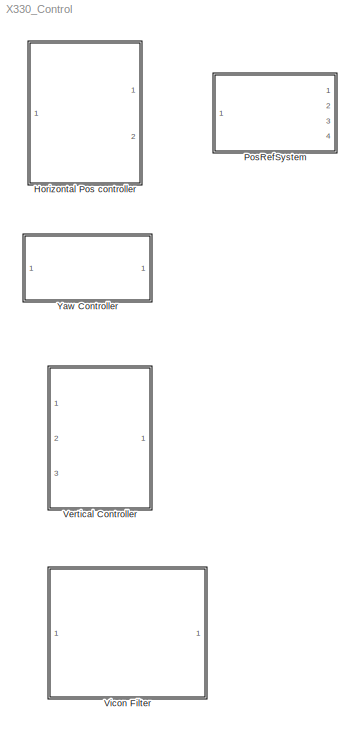
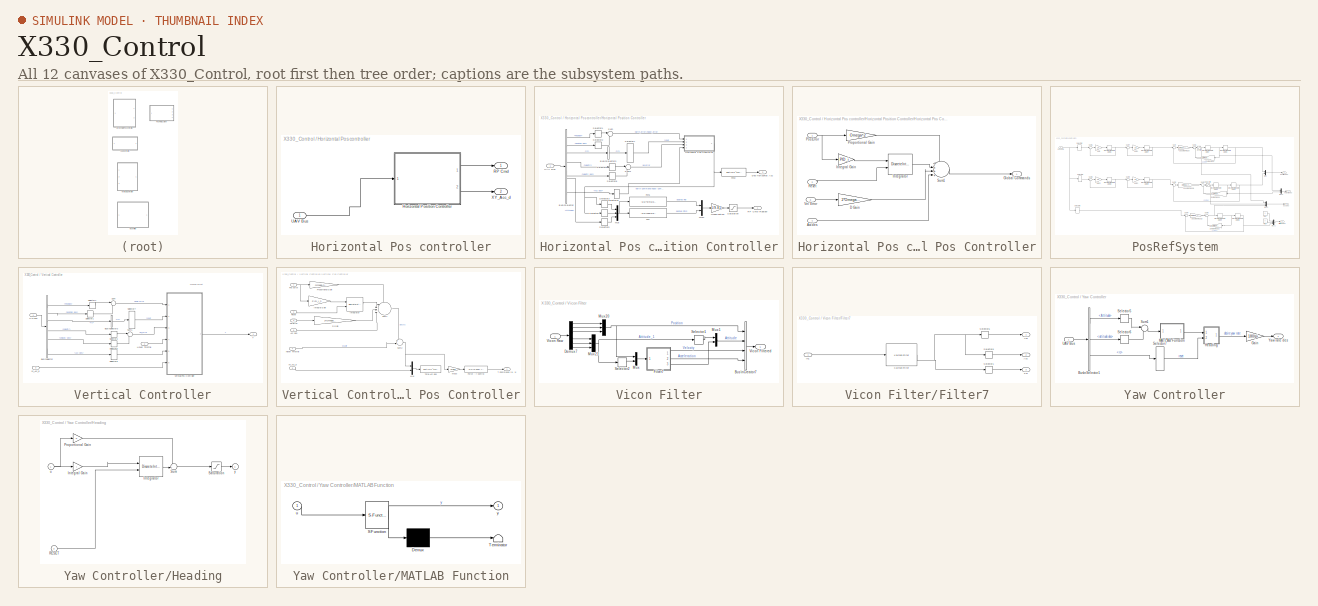
[diagram: thumbnail index - all 12 canvases of the model, root first then tree order]
MODEL X330_Control
KIND library
BLOCK [SubSystem] Horizontal Pos controller
  FunctionWithSeparateData = off
  MaskCallbackString = |||
  MaskEnableString = on,on,on,on
  MaskHideContents = off
  MaskIconFrame = on
  MaskIconOpaque = on
  MaskIconRotate = none
  MaskIconUnits = autoscale
  MaskPortRotate = default
  MaskPromptString = Cmd Maximum Roll/Pitch (Degree)|Omega (P Gain= Omega^2)|I Gain|Zeta (D = 2*Omega*Zeta)
  MaskStyleString = edit,edit,edit,edit
  MaskTabNameString = Setting,Control Parameters,Control Parameters,Control Parameters
  MaskToolTipString = on,on,on,on
  MaskTunableValueString = on,on,on,on
  MaskValueString = 60|2|1|0.5
  MaskVariables = Max_RP=@1;Omega=@2;PID_i=@3;Zeta=@4;
  MaskVisibilityString = on,on,on,on
  MinAlgLoopOccurrences = off
  Opaque = off
  Ports = [1, 2]
  PropExecContextOutsideSubsystem = off
  RTWSystemCode = Auto
  RequestExecContextInheritance = off
  SID = 1
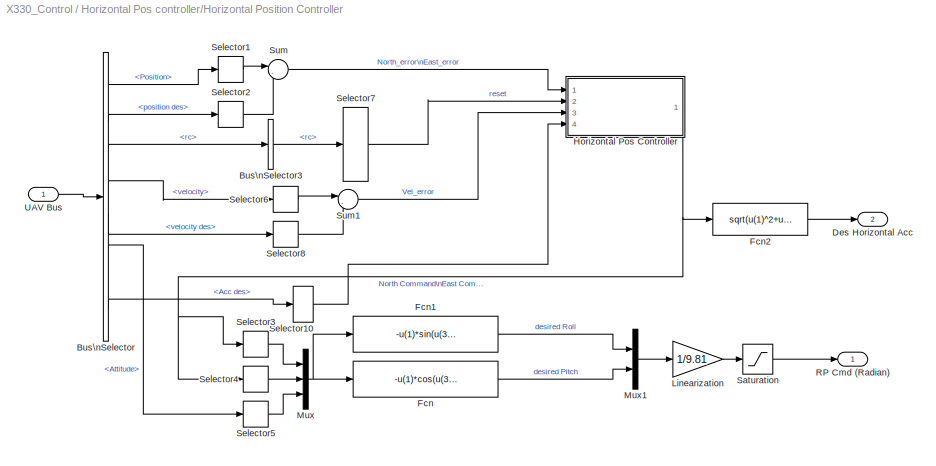
BLOCK [SubSystem] Horizontal Pos controller/Horizontal Position Controller
  FunctionWithSeparateData = off
  MaskHideContents = off
  MinAlgLoopOccurrences = off
  Opaque = off
  Ports = [1, 2]
  PropExecContextOutsideSubsystem = off
  RTWSystemCode = Auto
  RequestExecContextInheritance = off
  SID = 5
BLOCK [BusSelector] Horizontal Pos controller/Horizontal Position Controller/Bus\nSelector
  OutputSignals = Position,position des,rc,velocity,velocity des,Attitude,Acceleration,Acc des
  Ports = [1, 8]
  SID = 7
BLOCK [BusSelector] Horizontal Pos controller/Horizontal Position Controller/Bus\nSelector3
  OutputSignals = rc
  Ports = [1, 1]
  SID = 8
BLOCK [Outport] Horizontal Pos controller/Horizontal Position Controller/Des Horizontal Acc
  IconDisplay = Port number
  Port = 2
  SID = 183
BLOCK [Fcn] Horizontal Pos controller/Horizontal Position Controller/Fcn
  Expr = -u(1)*cos(u(3)) - u(2)*sin(u(3))
  SID = 9
BLOCK [Fcn] Horizontal Pos controller/Horizontal Position Controller/Fcn1
  Expr = -u(1)*sin(u(3)) + u(2)*cos(u(3))
  SID = 10
BLOCK [Fcn] Horizontal Pos controller/Horizontal Position Controller/Fcn2
  Expr = sqrt(u(1)^2+u(1)^2)
  SID = 182
BLOCK [SubSystem] Horizontal Pos controller/Horizontal Position Controller/Horizontal Pos Controller
  FunctionWithSeparateData = off
  MaskHideContents = off
  MinAlgLoopOccurrences = off
  Opaque = off
  Ports = [4, 1]
  PropExecContextOutsideSubsystem = off
  RTWSystemCode = Auto
  RequestExecContextInheritance = off
  SID = 11
BLOCK [Inport] Horizontal Pos controller/Horizontal Position Controller/Horizontal Pos Controller/Acc des
  IconDisplay = Port number
  Port = 4
  SID = 15
BLOCK [Gain] Horizontal Pos controller/Horizontal Position Controller/Horizontal Pos Controller/D Gain
  Gain = 2*Omega*Zeta
  OutDataTypeStr = double
  ParamDataTypeStr = Inherit: Inherit via internal rule
  SID = 16
  SaturateOnIntegerOverflow = off
BLOCK [Outport] Horizontal Pos controller/Horizontal Position Controller/Horizontal Pos Controller/Global Commands
  IconDisplay = Port number
  SID = 21
BLOCK [Gain] Horizontal Pos controller/Horizontal Position Controller/Horizontal Pos Controller/Integral Gain
  DisableCoverage = on
  Gain = PID_i
  OutDataTypeStr = double
  ParamDataTypeStr = double
  SID = 17
  SaturateOnIntegerOverflow = off
BLOCK [DiscreteIntegrator] Horizontal Pos controller/Horizontal Position Controller/Horizontal Pos Controller/Integrator
  DisableCoverage = on
  ExternalReset = rising
  ICPrevOutput = DiscIntNeverNeededParam
  ICPrevScaledInput = DiscIntNeverNeededParam
  InitialConditionMode = State only (most efficient)
  InitialConditionSource = internal
  IntegratorMethod = Integration: Trapezoidal
  LowerSaturationLimit = -10*pi/180
  OutDataTypeStr = double
  Ports = [2, 1]
  SID = 18
  SampleTime = -1
  UpperSaturationLimit = 10*pi/180
BLOCK [Inport] Horizontal Pos controller/Horizontal Position Controller/Horizontal Pos Controller/Pos Error
  IconDisplay = Port number
  SID = 12
BLOCK [Gain] Horizontal Pos controller/Horizontal Position Controller/Horizontal Pos Controller/Proportional Gain
  DisableCoverage = on
  Gain = Omega^2
  OutDataTypeStr = double
  ParamDataTypeStr = double
  SID = 19
  SaturateOnIntegerOverflow = off
BLOCK [Inport] Horizontal Pos controller/Horizontal Position Controller/Horizontal Pos Controller/Reset
  IconDisplay = Port number
  Port = 2
  SID = 13
BLOCK [Sum] Horizontal Pos controller/Horizontal Position Controller/Horizontal Pos Controller/Sum1
  AccumDataTypeStr = double
  DisableCoverage = on
  IconShape = round
  InputSameDT = off
  Inputs = ++++|
  OutDataTypeStr = double
  Ports = [4, 1]
  SID = 20
  SampleTime = 0.02
  SaturateOnIntegerOverflow = off
BLOCK [Inport] Horizontal Pos controller/Horizontal Position Controller/Horizontal Pos Controller/Vel Error
  IconDisplay = Port number
  Port = 3
  SID = 14
BLOCK [Gain] Horizontal Pos controller/Horizontal Position Controller/Linearization
  Gain = 1/9.81
  OutDataTypeStr = double
  ParamDataTypeStr = Inherit: Inherit via internal rule
  SID = 22
  SaturateOnIntegerOverflow = off
BLOCK [Mux] Horizontal Pos controller/Horizontal Position Controller/Mux
  DisplayOption = bar
  Inputs = 3
  Ports = [3, 1]
  SID = 23
BLOCK [Mux] Horizontal Pos controller/Horizontal Position Controller/Mux1
  DisplayOption = bar
  Inputs = 2
  Ports = [2, 1]
  SID = 24
BLOCK [Outport] Horizontal Pos controller/Horizontal Position Controller/RP Cmd (Radian)
  IconDisplay = Port number
  SID = 37
BLOCK [Saturate] Horizontal Pos controller/Horizontal Position Controller/Saturation
  InputPortMap = u0
  LowerLimit = -Max_RP
  Ports = [1, 1]
  SID = 25
  UpperLimit = Max_RP
BLOCK [Selector] Horizontal Pos controller/Horizontal Position Controller/Selector1
  IndexOptions = Index vector (dialog)
  Indices = [1 2]
  InputPortWidth = 3
  OutputSizes = 1
  Ports = [1, 1]
  SID = 26
BLOCK [Selector] Horizontal Pos controller/Horizontal Position Controller/Selector10
  IndexOptions = Index vector (dialog)
  Indices = [1 2]
  InputPortWidth = 4
  OutputSizes = 1
  Ports = [1, 1]
  SID = 27
BLOCK [Selector] Horizontal Pos controller/Horizontal Position Controller/Selector2
  IndexOptions = Index vector (dialog)
  Indices = [1 2]
  InputPortWidth = 3
  OutputSizes = 1
  Ports = [1, 1]
  SID = 28
BLOCK [Selector] Horizontal Pos controller/Horizontal Position Controller/Selector3
  IndexOptions = Index vector (dialog)
  Indices = [1]
  InputPortWidth = 2
  OutputSizes = 1
  Ports = [1, 1]
  SID = 29
BLOCK [Selector] Horizontal Pos controller/Horizontal Position Controller/Selector4
  IndexOptions = Index vector (dialog)
  Indices = [2]
  InputPortWidth = 2
  OutputSizes = 1
  Ports = [1, 1]
  SID = 30
BLOCK [Selector] Horizontal Pos controller/Horizontal Position Controller/Selector5
  IndexOptions = Index vector (dialog)
  Indices = [3]
  InputPortWidth = 3
  OutputSizes = 1
  Ports = [1, 1]
  SID = 31
BLOCK [Selector] Horizontal Pos controller/Horizontal Position Controller/Selector6
  IndexOptions = Index vector (dialog)
  Indices = [1 2]
  InputPortWidth = 3
  OutputSizes = 1
  Ports = [1, 1]
  SID = 32
BLOCK [Selector] Horizontal Pos controller/Horizontal Position Controller/Selector7
  IndexOptions = Index vector (dialog)
  Indices = [7]
  InputPortWidth = 8
  OutputSizes = 1
  Ports = [1, 1]
  SID = 33
BLOCK [Selector] Horizontal Pos controller/Horizontal Position Controller/Selector8
  IndexOptions = Index vector (dialog)
  Indices = [1 2]
  InputPortWidth = 3
  OutputSizes = 1
  Ports = [1, 1]
  SID = 34
BLOCK [Sum] Horizontal Pos controller/Horizontal Position Controller/Sum
  IconShape = round
  InputSameDT = off
  Inputs = |-+
  OutDataTypeStr = Inherit: Inherit via internal rule
  Ports = [2, 1]
  SID = 35
  SaturateOnIntegerOverflow = off
BLOCK [Sum] Horizontal Pos controller/Horizontal Position Controller/Sum1
  IconShape = round
  InputSameDT = off
  Inputs = |-+
  OutDataTypeStr = Inherit: Inherit via internal rule
  Ports = [2, 1]
  SID = 36
  SaturateOnIntegerOverflow = off
BLOCK [Inport] Horizontal Pos controller/Horizontal Position Controller/UAV Bus
  IconDisplay = Port number
  SID = 6
BLOCK [Outport] Horizontal Pos controller/RP Cmd
  IconDisplay = Port number
  SID = 45
BLOCK [Inport] Horizontal Pos controller/UAV Bus
  IconDisplay = Port number
  SID = 2
BLOCK [Outport] Horizontal Pos controller/XY_Acc_d
  IconDisplay = Port number
  Port = 2
  SID = 184
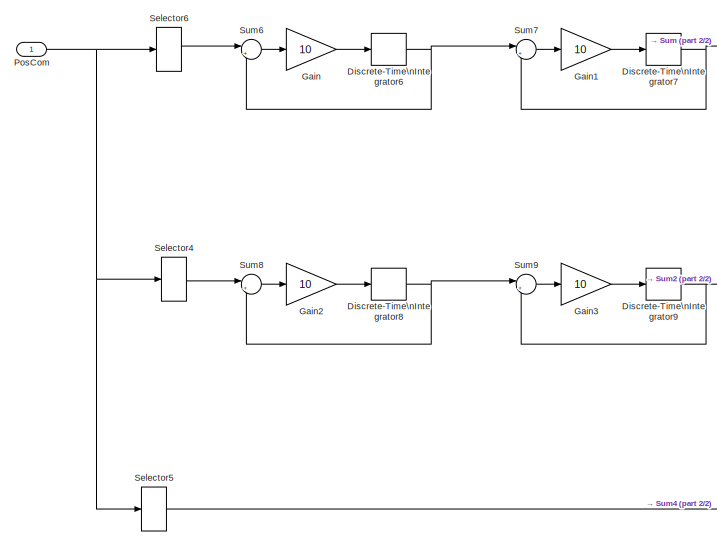
[diagram: PosRefSystem - part 1/2, left side, full height]
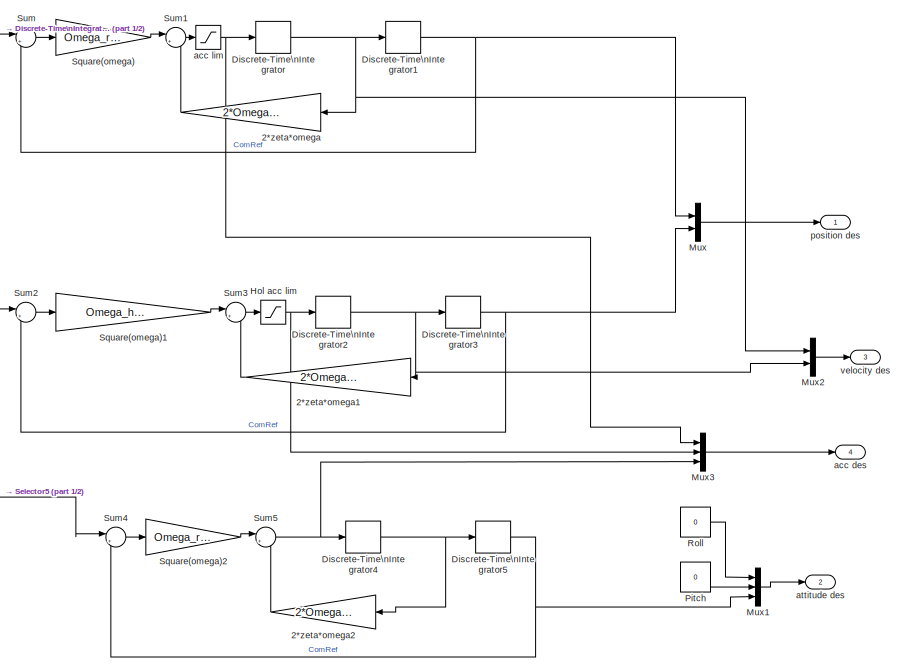
[diagram: PosRefSystem - part 2/2, right side, full height]
BLOCK [SubSystem] PosRefSystem
  FunctionWithSeparateData = off
  MaskCallbackString = |||||
  MaskEnableString = on,on,on,on,on,on
  MaskHideContents = off
  MaskIconFrame = on
  MaskIconOpaque = on
  MaskIconRotate = none
  MaskIconUnits = autoscale
  MaskPortRotate = default
  MaskPromptString = Omega_r (P Gain= Omega_r^2)|Zeta_r (D = 2*Omega_r*Zeta_r)|Acc_Max|Omega_h_r|Zeta_h_r|Acc_h_Max
  MaskStyleString = edit,edit,edit,edit,edit,edit
  MaskTabNameString = Horizontal Setting,Horizontal Setting,Horizontal Setting,Vertical Setting,Vertical Setting,Vertical Setting
  MaskToolTipString = on,on,on,on,on,on
  MaskTunableValueString = on,on,on,on,on,on
  MaskValueString = 1.8|0.5|5|3|1|4
  MaskVariables = Omega_r=@1;Zeta_r=@2;Acc_Max=@3;Omega_h_r=@4;Zeta_h_r=@5;Acc_h_Max=@6;
  MaskVisibilityString = on,on,on,on,on,on
  MinAlgLoopOccurrences = off
  Opaque = off
  Ports = [1, 4]
  PropExecContextOutsideSubsystem = off
  RTWSystemCode = Auto
  RequestExecContextInheritance = off
  SID = 100
BLOCK [Gain] PosRefSystem/2*zeta*omega
  Gain = 2*Omega_r*Zeta_r
  OutDataTypeStr = Inherit: Inherit via internal rule
  ParamDataTypeStr = Inherit: Inherit via internal rule
  SID = 102
  SaturateOnIntegerOverflow = off
BLOCK [Gain] PosRefSystem/2*zeta*omega1
  Gain = 2*Omega_h_r*Zeta_h_r
  OutDataTypeStr = Inherit: Inherit via internal rule
  ParamDataTypeStr = Inherit: Inherit via internal rule
  SID = 103
  SaturateOnIntegerOverflow = off
BLOCK [Gain] PosRefSystem/2*zeta*omega2
  Gain = 2*Omega_r
  OutDataTypeStr = Inherit: Inherit via internal rule
  ParamDataTypeStr = Inherit: Inherit via internal rule
  SID = 104
  SaturateOnIntegerOverflow = off
BLOCK [DiscreteIntegrator] PosRefSystem/Discrete-Time\nIntegrator
  ExternalReset = none
  ICPrevOutput = DiscIntNeverNeededParam
  ICPrevScaledInput = DiscIntNeverNeededParam
  InitialConditionSource = internal
  IntegratorMethod = Integration: Forward Euler
  Ports = [1, 1]
  SID = 105
  SampleTime = -1
BLOCK [DiscreteIntegrator] PosRefSystem/Discrete-Time\nIntegrator1
  ExternalReset = none
  ICPrevOutput = DiscIntNeverNeededParam
  ICPrevScaledInput = DiscIntNeverNeededParam
  InitialConditionSource = internal
  IntegratorMethod = Integration: Forward Euler
  Ports = [1, 1]
  SID = 106
  SampleTime = -1
BLOCK [DiscreteIntegrator] PosRefSystem/Discrete-Time\nIntegrator2
  ExternalReset = none
  ICPrevOutput = DiscIntNeverNeededParam
  ICPrevScaledInput = DiscIntNeverNeededParam
  InitialConditionSource = internal
  IntegratorMethod = Integration: Forward Euler
  Ports = [1, 1]
  SID = 107
  SampleTime = -1
BLOCK [DiscreteIntegrator] PosRefSystem/Discrete-Time\nIntegrator3
  ExternalReset = none
  ICPrevOutput = DiscIntNeverNeededParam
  ICPrevScaledInput = DiscIntNeverNeededParam
  InitialConditionSource = internal
  IntegratorMethod = Integration: Forward Euler
  Ports = [1, 1]
  SID = 108
  SampleTime = -1
BLOCK [DiscreteIntegrator] PosRefSystem/Discrete-Time\nIntegrator4
  ExternalReset = none
  ICPrevOutput = DiscIntNeverNeededParam
  ICPrevScaledInput = DiscIntNeverNeededParam
  InitialConditionSource = internal
  IntegratorMethod = Integration: Forward Euler
  Ports = [1, 1]
  SID = 109
  SampleTime = -1
BLOCK [DiscreteIntegrator] PosRefSystem/Discrete-Time\nIntegrator5
  ExternalReset = none
  ICPrevOutput = DiscIntNeverNeededParam
  ICPrevScaledInput = DiscIntNeverNeededParam
  InitialConditionSource = internal
  IntegratorMethod = Integration: Forward Euler
  Ports = [1, 1]
  SID = 110
  SampleTime = -1
BLOCK [DiscreteIntegrator] PosRefSystem/Discrete-Time\nIntegrator6
  ExternalReset = none
  ICPrevOutput = DiscIntNeverNeededParam
  ICPrevScaledInput = DiscIntNeverNeededParam
  InitialConditionSource = internal
  IntegratorMethod = Integration: Forward Euler
  Ports = [1, 1]
  SID = 111
  SampleTime = -1
BLOCK [DiscreteIntegrator] PosRefSystem/Discrete-Time\nIntegrator7
  ExternalReset = none
  ICPrevOutput = DiscIntNeverNeededParam
  ICPrevScaledInput = DiscIntNeverNeededParam
  InitialConditionSource = internal
  IntegratorMethod = Integration: Forward Euler
  Ports = [1, 1]
  SID = 112
  SampleTime = -1
BLOCK [DiscreteIntegrator] PosRefSystem/Discrete-Time\nIntegrator8
  ExternalReset = none
  ICPrevOutput = DiscIntNeverNeededParam
  ICPrevScaledInput = DiscIntNeverNeededParam
  InitialConditionSource = internal
  IntegratorMethod = Integration: Forward Euler
  Ports = [1, 1]
  SID = 113
  SampleTime = -1
BLOCK [DiscreteIntegrator] PosRefSystem/Discrete-Time\nIntegrator9
  ExternalReset = none
  ICPrevOutput = DiscIntNeverNeededParam
  ICPrevScaledInput = DiscIntNeverNeededParam
  InitialConditionSource = internal
  IntegratorMethod = Integration: Forward Euler
  Ports = [1, 1]
  SID = 114
  SampleTime = -1
BLOCK [Gain] PosRefSystem/Gain
  Gain = 10
  OutDataTypeStr = Inherit: Inherit via internal rule
  ParamDataTypeStr = Inherit: Inherit via internal rule
  SID = 115
  SaturateOnIntegerOverflow = off
BLOCK [Gain] PosRefSystem/Gain1
  Gain = 10
  OutDataTypeStr = Inherit: Inherit via internal rule
  ParamDataTypeStr = Inherit: Inherit via internal rule
  SID = 116
  SaturateOnIntegerOverflow = off
BLOCK [Gain] PosRefSystem/Gain2
  Gain = 10
  OutDataTypeStr = Inherit: Inherit via internal rule
  ParamDataTypeStr = Inherit: Inherit via internal rule
  SID = 117
  SaturateOnIntegerOverflow = off
BLOCK [Gain] PosRefSystem/Gain3
  Gain = 10
  OutDataTypeStr = Inherit: Inherit via internal rule
  ParamDataTypeStr = Inherit: Inherit via internal rule
  SID = 118
  SaturateOnIntegerOverflow = off
BLOCK [Saturate] PosRefSystem/Hol acc lim
  InputPortMap = u0
  LowerLimit = -Acc_h_Max
  Ports = [1, 1]
  SID = 119
  UpperLimit = Acc_h_Max
BLOCK [Mux] PosRefSystem/Mux
  DisplayOption = bar
  Inputs = 2
  Ports = [2, 1]
  SID = 120
BLOCK [Mux] PosRefSystem/Mux1
  DisplayOption = bar
  Inputs = 3
  Ports = [3, 1]
  SID = 121
BLOCK [Mux] PosRefSystem/Mux2
  DisplayOption = bar
  Inputs = 2
  Ports = [2, 1]
  SID = 122
BLOCK [Mux] PosRefSystem/Mux3
  DisplayOption = bar
  Inputs = 3
  Ports = [3, 1]
  SID = 123
BLOCK [Constant] PosRefSystem/Pitch
  SID = 124
  SampleTime = 0.02
  Value = 0
BLOCK [Inport] PosRefSystem/PosCom
  IconDisplay = Port number
  SID = 101
BLOCK [Constant] PosRefSystem/Roll
  SID = 125
  SampleTime = 0.02
  Value = 0
BLOCK [Selector] PosRefSystem/Selector4
  IndexOptions = Index vector (dialog)
  Indices = [3]
  InputPortWidth = 4
  OutputSizes = 1
  Ports = [1, 1]
  SID = 126
BLOCK [Selector] PosRefSystem/Selector5
  IndexOptions = Index vector (dialog)
  Indices = [4]
  InputPortWidth = 4
  OutputSizes = 1
  Ports = [1, 1]
  SID = 127
BLOCK [Selector] PosRefSystem/Selector6
  IndexOptions = Index vector (dialog)
  Indices = [1 2]
  InputPortWidth = 4
  OutputSizes = 1
  Ports = [1, 1]
  SID = 128
BLOCK [Gain] PosRefSystem/Square(omega)
  Gain = Omega_r^2
  OutDataTypeStr = Inherit: Inherit via internal rule
  ParamDataTypeStr = Inherit: Inherit via internal rule
  SID = 129
  SaturateOnIntegerOverflow = off
BLOCK [Gain] PosRefSystem/Square(omega)1
  Gain = Omega_h_r^2
  OutDataTypeStr = Inherit: Inherit via internal rule
  ParamDataTypeStr = Inherit: Inherit via internal rule
  SID = 130
  SaturateOnIntegerOverflow = off
BLOCK [Gain] PosRefSystem/Square(omega)2
  Gain = Omega_r^2
  OutDataTypeStr = Inherit: Inherit via internal rule
  ParamDataTypeStr = Inherit: Inherit via internal rule
  SID = 131
  SaturateOnIntegerOverflow = off
BLOCK [Sum] PosRefSystem/Sum
  IconShape = round
  InputSameDT = off
  Inputs = |+-
  OutDataTypeStr = Inherit: Inherit via internal rule
  Ports = [2, 1]
  SID = 132
  SaturateOnIntegerOverflow = off
BLOCK [Sum] PosRefSystem/Sum1
  IconShape = round
  InputSameDT = off
  Inputs = |+-
  OutDataTypeStr = Inherit: Inherit via internal rule
  Ports = [2, 1]
  SID = 133
  SaturateOnIntegerOverflow = off
BLOCK [Sum] PosRefSystem/Sum2
  IconShape = round
  InputSameDT = off
  Inputs = |+-
  OutDataTypeStr = Inherit: Inherit via internal rule
  Ports = [2, 1]
  SID = 134
  SaturateOnIntegerOverflow = off
BLOCK [Sum] PosRefSystem/Sum3
  IconShape = round
  InputSameDT = off
  Inputs = |+-
  OutDataTypeStr = Inherit: Inherit via internal rule
  Ports = [2, 1]
  SID = 135
  SaturateOnIntegerOverflow = off
BLOCK [Sum] PosRefSystem/Sum4
  IconShape = round
  InputSameDT = off
  Inputs = |+-
  OutDataTypeStr = Inherit: Inherit via internal rule
  Ports = [2, 1]
  SID = 136
  SaturateOnIntegerOverflow = off
BLOCK [Sum] PosRefSystem/Sum5
  IconShape = round
  InputSameDT = off
  Inputs = |+-
  OutDataTypeStr = Inherit: Inherit via internal rule
  Ports = [2, 1]
  SID = 137
  SaturateOnIntegerOverflow = off
BLOCK [Sum] PosRefSystem/Sum6
  IconShape = round
  InputSameDT = off
  Inputs = |+-
  OutDataTypeStr = Inherit: Inherit via internal rule
  Ports = [2, 1]
  SID = 138
  SaturateOnIntegerOverflow = off
BLOCK [Sum] PosRefSystem/Sum7
  IconShape = round
  InputSameDT = off
  Inputs = |+-
  OutDataTypeStr = Inherit: Inherit via internal rule
  Ports = [2, 1]
  SID = 139
  SaturateOnIntegerOverflow = off
BLOCK [Sum] PosRefSystem/Sum8
  IconShape = round
  InputSameDT = off
  Inputs = |+-
  OutDataTypeStr = Inherit: Inherit via internal rule
  Ports = [2, 1]
  SID = 140
  SaturateOnIntegerOverflow = off
BLOCK [Sum] PosRefSystem/Sum9
  IconShape = round
  InputSameDT = off
  Inputs = |+-
  OutDataTypeStr = Inherit: Inherit via internal rule
  Ports = [2, 1]
  SID = 141
  SaturateOnIntegerOverflow = off
BLOCK [Outport] PosRefSystem/acc des
  IconDisplay = Port number
  Port = 4
  SID = 146
BLOCK [Saturate] PosRefSystem/acc lim
  InputPortMap = u0
  LowerLimit = -Acc_Max
  Ports = [1, 1]
  SID = 142
  UpperLimit = Acc_Max
BLOCK [Outport] PosRefSystem/attitude des
  IconDisplay = Port number
  Port = 2
  SID = 144
BLOCK [Outport] PosRefSystem/position des
  IconDisplay = Port number
  SID = 143
BLOCK [Outport] PosRefSystem/velocity des
  IconDisplay = Port number
  Port = 3
  SID = 145
BLOCK [SubSystem] Vertical Controller
  FunctionWithSeparateData = off
  MaskCallbackString = |||
  MaskEnableString = on,on,on,on
  MaskHideContents = off
  MaskIconFrame = on
  MaskIconOpaque = on
  MaskIconRotate = none
  MaskIconUnits = autoscale
  MaskPortRotate = default
  MaskPromptString = Omega (P Gain  = Omega^2)|Zeta (D Gain = 2*Omega*Zeta)|I Gain|Mass
  MaskStyleString = edit,edit,edit,edit
  MaskTabNameString = Control Paramters,Control Paramters,Control Paramters,Mass
  MaskToolTipString = on,on,on,on
  MaskTunableValueString = on,on,on,on
  MaskValueString = 3.1|1|1|0.65
  MaskVariables = Omega_h=@1;Zeta_h=@2;PID_I_h=@3;mass=@4;
  MaskVisibilityString = on,on,on,on
  MinAlgLoopOccurrences = off
  Opaque = off
  Ports = [3, 1]
  PropExecContextOutsideSubsystem = off
  RTWSystemCode = Auto
  RequestExecContextInheritance = off
  SID = 57
BLOCK [BusSelector] Vertical Controller/Bus\nSelector
  OutputSignals = Position,position des,rc,velocity,velocity des,Acc des
  Ports = [1, 6]
  SID = 61
BLOCK [BusSelector] Vertical Controller/Bus\nSelector3
  OutputSignals = rc
  Ports = [1, 1]
  SID = 62
BLOCK [Inport] Vertical Controller/Hover Throttle
  IconDisplay = Port number
  Port = 2
  SID = 59
BLOCK [Selector] Vertical Controller/Selector1
  IndexOptions = Index vector (dialog)
  Indices = [3]
  InputPortWidth = 3
  OutputSizes = 1
  Ports = [1, 1]
  SID = 66
BLOCK [Selector] Vertical Controller/Selector3
  IndexOptions = Index vector (dialog)
  Indices = [3]
  InputPortWidth = 3
  OutputSizes = 1
  Ports = [1, 1]
  SID = 68
BLOCK [Selector] Vertical Controller/Selector4
  IndexOptions = Index vector (dialog)
  Indices = [3]
  InputPortWidth = 3
  OutputSizes = 1
  Ports = [1, 1]
  SID = 69
BLOCK [Selector] Vertical Controller/Selector5
  IndexOptions = Index vector (dialog)
  Indices = [3]
  InputPortWidth = 3
  OutputSizes = 1
  Ports = [1, 1]
  SID = 70
BLOCK [Selector] Vertical Controller/Selector6
  IndexOptions = Index vector (dialog)
  Indices = [3]
  InputPortWidth = 4
  OutputSizes = 1
  Ports = [1, 1]
  SID = 71
BLOCK [Selector] Vertical Controller/Selector7
  IndexOptions = Index vector (dialog)
  Indices = [7]
  InputPortWidth = 8
  OutputSizes = 1
  Ports = [1, 1]
  SID = 72
BLOCK [Sum] Vertical Controller/Sum
  IconShape = round
  InputSameDT = off
  Inputs = |-+
  OutDataTypeStr = Inherit: Inherit via internal rule
  Ports = [2, 1]
  SID = 73
  SaturateOnIntegerOverflow = off
BLOCK [Sum] Vertical Controller/Sum1
  IconShape = round
  InputSameDT = off
  Inputs = |-+
  OutDataTypeStr = Inherit: Inherit via internal rule
  Ports = [2, 1]
  SID = 74
  SaturateOnIntegerOverflow = off
BLOCK [Outport] Vertical Controller/T
  IconDisplay = Port number
  SID = 90
BLOCK [Inport] Vertical Controller/UAV bus
  IconDisplay = Port number
  SID = 58
BLOCK [SubSystem] Vertical Controller/Verticall Pos Controller
  FunctionWithSeparateData = off
  MaskHideContents = off
  MinAlgLoopOccurrences = off
  Opaque = off
  Ports = [6, 1]
  PropExecContextOutsideSubsystem = off
  RTWSystemCode = Auto
  RequestExecContextInheritance = off
  SID = 75
BLOCK [Inport] Vertical Controller/Verticall Pos Controller/Acc des
  IconDisplay = Port number
  Port = 5
  SID = 80
BLOCK [Gain] Vertical Controller/Verticall Pos Controller/D Gain
  Gain = 2*Omega_h*Zeta_h
  OutDataTypeStr = double
  ParamDataTypeStr = Inherit: Inherit via internal rule
  SID = 81
  SaturateOnIntegerOverflow = off
BLOCK [Fcn] Vertical Controller/Verticall Pos Controller/Force --> Control
  Expr = u(1)*0.0287 + 0.1485
  SID = 192
BLOCK [Inport] Vertical Controller/Verticall Pos Controller/Hover Throttle
  IconDisplay = Port number
  Port = 4
  SID = 79
BLOCK [Gain] Vertical Controller/Verticall Pos Controller/Integral Gain
  DisableCoverage = on
  Gain = PID_I_h
  OutDataTypeStr = double
  ParamDataTypeStr = double
  SID = 83
  SaturateOnIntegerOverflow = off
BLOCK [DiscreteIntegrator] Vertical Controller/Verticall Pos Controller/Integrator
  DisableCoverage = on
  ExternalReset = rising
  ICPrevOutput = DiscIntNeverNeededParam
  ICPrevScaledInput = DiscIntNeverNeededParam
  InitialConditionMode = State only (most efficient)
  InitialConditionSource = internal
  IntegratorMethod = Integration: Trapezoidal
  LowerSaturationLimit = -0.3
  OutDataTypeStr = double
  Ports = [2, 1]
  SID = 84
  SampleTime = -1
  UpperSaturationLimit = 0.3
BLOCK [Gain] Vertical Controller/Verticall Pos Controller/Mass
  DisableCoverage = on
  Gain = mass
  OutDataTypeStr = double
  ParamDataTypeStr = double
  SID = 193
  SaturateOnIntegerOverflow = off
BLOCK [Mux] Vertical Controller/Verticall Pos Controller/Mux
  DisplayOption = bar
  Inputs = 2
  Ports = [2, 1]
  SID = 194
BLOCK [Inport] Vertical Controller/Verticall Pos Controller/Pos Error
  IconDisplay = Port number
  SID = 76
BLOCK [Gain] Vertical Controller/Verticall Pos Controller/Proportional Gain
  DisableCoverage = on
  Gain = Omega_h^2
  OutDataTypeStr = double
  ParamDataTypeStr = double
  SID = 86
  SaturateOnIntegerOverflow = off
BLOCK [Inport] Vertical Controller/Verticall Pos Controller/Reset
  IconDisplay = Port number
  Port = 2
  SID = 77
BLOCK [Sum] Vertical Controller/Verticall Pos Controller/Sum1
  AccumDataTypeStr = double
  DisableCoverage = on
  IconShape = round
  InputSameDT = off
  Inputs = ----|
  OutDataTypeStr = double
  Ports = [4, 1]
  SID = 87
  SampleTime = 0.02
  SaturateOnIntegerOverflow = off
BLOCK [Sum] Vertical Controller/Verticall Pos Controller/Sum2
  AccumDataTypeStr = double
  DisableCoverage = on
  IconShape = round
  InputSameDT = off
  Inputs = ++|
  OutDataTypeStr = double
  Ports = [2, 1]
  SID = 197
  SampleTime = 0.02
  SaturateOnIntegerOverflow = off
BLOCK [Outport] Vertical Controller/Verticall Pos Controller/T  Commands [0, 1]
  IconDisplay = Port number
  SID = 89
BLOCK [Fcn] Vertical Controller/Verticall Pos Controller/Total Acc des
  Expr = sqrt(u(1)^2+u(2)^2)
  SID = 198
BLOCK [Inport] Vertical Controller/Verticall Pos Controller/Vel Error
  IconDisplay = Port number
  Port = 3
  SID = 78
BLOCK [Inport] Vertical Controller/Verticall Pos Controller/XY_Acc_d
  IconDisplay = Port number
  Port = 6
  SID = 199
BLOCK [Inport] Vertical Controller/XY_Acc_d
  IconDisplay = Port number
  Port = 3
  SID = 185
BLOCK [SubSystem] Vicon Filter
  FunctionWithSeparateData = off
  MaskHideContents = off
  MinAlgLoopOccurrences = off
  Opaque = off
  Ports = [1, 1]
  PropExecContextOutsideSubsystem = off
  RTWSystemCode = Auto
  RequestExecContextInheritance = off
  SID = 179
BLOCK [BusCreator] Vicon Filter/Bus\nCreator7
  DisplayOption = bar
  Ports = [4, 1]
  SID = 161
BLOCK [Demux] Vicon Filter/Demux7
  DisplayOption = bar
  Outputs = 6
  Ports = [1, 6]
  SID = 162
BLOCK [SubSystem] Vicon Filter/Filter7
  FunctionWithSeparateData = off
  MaskHideContents = off
  MinAlgLoopOccurrences = off
  Opaque = off
  Ports = [1, 3]
  PropExecContextOutsideSubsystem = off
  RTWSystemCode = Auto
  RequestExecContextInheritance = off
  SID = 163
BLOCK [Outport] Vicon Filter/Filter7/Acc
  IconDisplay = Port number
  Port = 2
  SID = 170
BLOCK [Inport] Vicon Filter/Filter7/In1
  IconDisplay = Port number
  SID = 164
BLOCK [Reference] Vicon Filter/Filter7/Kalman Filter  REF=dspadpt3/Kalman Filter
  A = [1 sample_time_Vicon sample_time_Vicon*sample_time_Vicon/2 zeros(1,9);0 1 sample_time_Vicon zeros(1,9);0 0 1 zeros(1,9);0 0 0 1 sample_time_Vicon sample_time_Vicon*sample_time_Vicon/2 zeros(1,6);zeros(1,4) 1 sample_time_Vicon zeros(1,6);zeros(1,5) 1 zeros(1,6);zeros(1,6) 1 sample_time_Vicon sample_time_Vicon*sample_time_Vicon/2 zeros(1,3);zeros(1,7) 1 sample_time_Vicon zeros(1,3);zeros(1,8) 1 zero...<+123ch>
  FunctionWithSeparateData = off
  GeneratePreprocessorConditionals = off
  H = [1 zeros(1,11); zeros(1,3) 1 zeros(1,8);zeros(1,6) 1 zeros(1,5);zeros(1,9) 1 0 0]
  P = zeros(12)
  Ports = [1, 1]
  Q = diag([0 0.001 0.001 0 0.001 0.001 0 0.001 0.001 0 0.001 0.001]);
  R = diag([0.001 0.001 0.001 0.05])
  RTWMemSecDataConstants = Inherit from model
  RTWMemSecDataInternal = Inherit from model
  RTWMemSecDataParameters = Inherit from model
  RTWMemSecFuncExecute = Inherit from model
  RTWMemSecFuncInitTerm = Inherit from model
  SID = 165
  ShowPortLabels = FromPortIcon
  SourceBlock = dspadpt3/Kalman Filter
  SourceType = Kalman Filter
  SystemSampleTime = -1
  X = zeros([12, 1])
  isOutputEstError = off
  isOutputEstMeasure = off
  isOutputEstState = on
  isOutputPrdError = off
  isOutputPrdMeasure = off
  isOutputPrdState = off
  isReset = on
  num_targets = 1
  sourceEnable = Always
  sourceMeasure = Specify via Dialog
BLOCK [Outport] Vicon Filter/Filter7/Psi
  IconDisplay = Port number
  Port = 3
  SID = 171
BLOCK [Selector] Vicon Filter/Filter7/Selector1
  IndexOptions = Index vector (dialog)
  Indices = [10]
  InputPortWidth = 12
  OutputSizes = 1
  Ports = [1, 1]
  SID = 166
BLOCK [Selector] Vicon Filter/Filter7/Selector5
  IndexOptions = Index vector (dialog)
  Indices = [2 5 8]
  InputPortWidth = 12
  OutputSizes = 1
  Ports = [1, 1]
  SID = 167
BLOCK [Selector] Vicon Filter/Filter7/Selector6
  IndexOptions = Index vector (dialog)
  Indices = [3 6 9]
  InputPortWidth = 12
  OutputSizes = 1
  Ports = [1, 1]
  SID = 168
BLOCK [Outport] Vicon Filter/Filter7/Vel
  IconDisplay = Port number
  SID = 169
BLOCK [Mux] Vicon Filter/Mux
  DisplayOption = bar
  Inputs = 2
  Ports = [2, 1]
  SID = 173
BLOCK [Mux] Vicon Filter/Mux1
  DisplayOption = bar
  Inputs = 2
  Ports = [2, 1]
  SID = 174
BLOCK [Mux] Vicon Filter/Mux20
  DisplayOption = bar
  Inputs = 3
  Ports = [3, 1]
  SID = 175
BLOCK [Mux] Vicon Filter/Mux21
  DisplayOption = bar
  Inputs = 3
  Ports = [3, 1]
  SID = 176
BLOCK [Selector] Vicon Filter/Selector1
  IndexOptions = Index vector (dialog)
  Indices = [1 2]
  InputPortWidth = 3
  OutputSizes = 1
  Ports = [1, 1]
  SID = 177
BLOCK [Selector] Vicon Filter/Selector2
  IndexOptions = Index vector (dialog)
  Indices = [3]
  InputPortWidth = 3
  OutputSizes = 1
  Ports = [1, 1]
  SID = 178
BLOCK [Outport] Vicon Filter/Vicon Filtered
  IconDisplay = Port number
  SID = 181
BLOCK [Inport] Vicon Filter/Vicon Raw
  IconDisplay = Port number
  SID = 180
BLOCK [SubSystem] Yaw Controller
  FunctionWithSeparateData = off
  MaskHideContents = off
  MinAlgLoopOccurrences = off
  Opaque = off
  Ports = [1, 1]
  PropExecContextOutsideSubsystem = off
  RTWSystemCode = Auto
  RequestExecContextInheritance = off
  SID = 46
BLOCK [BusSelector] Yaw Controller/Bus\nSelector1
  OutputSignals = Attitude,attitude des,rc
  Ports = [1, 3]
  SID = 48
BLOCK [Gain] Yaw Controller/Gain
  Gain = 180/pi
  OutDataTypeStr = Inherit: Inherit via internal rule
  ParamDataTypeStr = Inherit: Inherit via internal rule
  SID = 49
  SaturateOnIntegerOverflow = off
BLOCK [SubSystem] Yaw Controller/Heading
  AncestorBlock = simulink/Continuous/PID Controller
  DeleteFcn = pidpack.PIDConfig.closeTuner(gcbh)
  DialogController = pidpack.PIDConfig.pidDDGCreate
  DialogControllerArgs = DataTag0
  FunctionWithSeparateData = off
  MaskCallbackString = |||||||||||||||||||||||||||||||||||||||||||||||||||||||||||||||||||||||||||||||||||||||||||||||||||||
  MaskCapabilities = slmaskedcaps(gcbh)
  MaskDescription = This block implements continuous- and discrete-time PID control algorithms and includes advanced features such as anti-windup, external reset, and signal tracking. You can tune the PID gains automatically using the 'Tune...' button (requires Simulink Control Design).
  MaskDisplay = disp('PI(z)')\nport_label('input',1, '');\nport_label('output',1, '');plot([0 4 4 7]+2,[0 0 8 8]+8);\nplot([1 4 6]+2,[3 6 3]+8);\nplot([0 4 6 10]+32,[0 0 8 8]+18);\n
  MaskEnableString = on,on,on,on,on,on,on,on,on,on,on,on,on,on,on,on,on,off,off,off,off,off,on,off,on,on,on,on,on,on,on,on,on,on,on,on,on,on,on,on,on,on,on,on,on,on,on,on,on,on,on,on,on,on,on,on,on,on,on,on,on,on,on,on,on,on,on,on,on,on,on,on,on,on,on,on,on,on,on,on,on,on,on,on,on,on,on,on,on,on,on,on,on,on,off,off,off,on,on,off,off,off
  MaskHideContents = off
  MaskIconFrame = on
  MaskIconOpaque = on
  MaskIconRotate = none
  MaskIconUnits = pixels
  MaskInitialization = pidpack.PIDConfig.configPID(gcbh);
  MaskPortRotate = default
  MaskPromptString = Controller:|Time domain:|Sample time (-1 for inherited):|Integrator method:|Filter method:|Form:|Proportional (P):|Integral (I):|Derivative (D):|Filter coefficient (N):|Source:|Integrator:|Filter:|External reset:|Ignore reset when linearizing|Enable zero-crossing detection|Limit output|Upper saturation limit:|Lower saturation limit:|Ignore saturation when linearizing|Anti-windup method:|Back-calcu...<+1875ch>
  MaskRunInitForIconRedraw = on
  MaskSelfModifiable = on
  MaskStyleString = popup(PID|PI|PD|P|I),popup(Continuous-time|Discrete-time),edit,popup(Forward Euler|Backward Euler|Trapezoidal),popup(Forward Euler|Backward Euler|Trapezoidal),popup(Ideal|Parallel),edit,edit,edit,edit,popup(internal|external),edit,edit,popup(none|rising|falling|either|level),checkbox,checkbox,checkbox,edit,edit,checkbox,popup(none|back-calculation|clamping),edit,checkbox,edit,popup(Ceiling|Converg...<+6354ch>
  MaskToolTipString = on,on,on,on,on,on,on,on,on,on,on,on,on,on,on,on,on,on,on,on,on,on,on,on,on,on,on,on,on,on,on,on,on,on,on,on,on,on,on,on,on,on,on,on,on,on,on,on,on,on,on,on,on,on,on,on,on,on,on,on,on,on,on,on,on,on,on,on,on,on,on,on,on,on,on,on,on,on,on,on,on,on,on,on,on,on,on,on,on,on,on,on,on,on,on,on,on,on,on,on,on,on
  MaskTunableValueString = off,off,off,off,off,off,on,on,on,on,off,off,off,off,off,off,off,off,off,off,off,on,off,on,off,off,off,off,off,off,off,off,off,off,off,off,off,off,off,off,off,off,off,off,off,off,off,off,off,off,off,off,off,off,off,off,off,off,off,off,off,off,off,off,off,off,off,off,off,off,off,off,off,off,off,off,off,off,off,off,off,off,off,off,off,off,off,off,off,off,off,off,off,off,off,off,off,off,off,off,off,of...<+1ch>
  MaskType = PID 1dof
  MaskValueString = PI|Discrete-time|0.02|Trapezoidal|Trapezoidal|Parallel|3|1|0|100|internal|0|0|rising|off|on|on|300*pi/180|-300*pi/180|off|none|1|off|1|Floor|off|off|[]|[]|Inherit: Inherit via internal rule|[]|[]|Inherit: Inherit via internal rule|[]|[]|Inherit: Inherit via internal rule|[]|[]|Inherit: Inherit via internal rule|[]|[]|Inherit: Inherit via internal rule|[]|[]|Inherit: Inherit via internal rule|[]|[]...<+759ch>
  MaskVariables = Controller=&1;TimeDomain=&2;SampleTime=@3;IntegratorMethod=&4;FilterMethod=&5;Form=&6;P=@7;I=@8;D=@9;N=@10;InitialConditionSource=&11;InitialConditionForIntegrator=@12;InitialConditionForFilter=@13;ExternalReset=&14;IgnoreLimit=&15;ZeroCross=&16;LimitOutput=&17;UpperSaturationLimit=@18;LowerSaturationLimit=@19;LinearizeAsGain=&20;AntiWindupMode=&21;Kb=@22;TrackingMode=&23;Kt=@24;RndMeth=&25;Satura...<+1582ch>
  MaskVisibilityString = on,on,off,off,off,on,on,on,on,on,on,on,on,on,on,on,on,on,on,on,on,off,on,on,on,on,on,on,on,on,on,on,on,on,on,on,on,on,on,off,off,off,off,off,off,on,on,on,on,on,on,on,on,on,on,on,on,off,off,off,off,off,off,off,off,off,off,off,off,on,on,on,off,off,off,off,off,off,off,off,off,on,on,on,on,off,off,off,on,off,off,off,on,off,off,off,off,on,off,off,off,off
  MinAlgLoopOccurrences = off
  ModelCloseFcn = pidpack.PIDConfig.closeTuner(gcbh)
  NameChangeFcn = pidpack.PIDConfig.updateTunerName(gcbh)
  Opaque = off
  Ports = [2, 1]
  PropExecContextOutsideSubsystem = off
  RTWSystemCode = Auto
  RequestExecContextInheritance = off
  SID = 50
BLOCK [Gain] Yaw Controller/Heading/Integral Gain
  DisableCoverage = on
  Gain = I
  OutDataTypeStr = IOutDataTypeStr
  OutMax = IOutMax
  OutMin = IOutMin
  ParamDataTypeStr = IParamDataTypeStr
  ParamMax = IParamMax
  ParamMin = IParamMin
  SID = 50:1680
  SaturateOnIntegerOverflow = off
BLOCK [DiscreteIntegrator] Yaw Controller/Heading/Integrator
  DisableCoverage = on
  ExternalReset = rising
  ICPrevOutput = DiscIntNeverNeededParam
  ICPrevScaledInput = DiscIntNeverNeededParam
  InitialCondition = InitialConditionForIntegrator
  InitialConditionMode = State only (most efficient)
  InitialConditionSource = internal
  IntegratorMethod = Integration: Trapezoidal
  OutDataTypeStr = IntegratorOutDataTypeStr
  OutMax = IntegratorOutMax
  OutMin = IntegratorOutMin
  Ports = [2, 1]
  SID = 50:1681
  SampleTime = -1
BLOCK [Gain] Yaw Controller/Heading/Proportional Gain
  DisableCoverage = on
  Gain = P
  OutDataTypeStr = POutDataTypeStr
  OutMax = POutMax
  OutMin = POutMin
  ParamDataTypeStr = PParamDataTypeStr
  ParamMax = PParamMax
  ParamMin = PParamMin
  SID = 50:1679
  SaturateOnIntegerOverflow = off
BLOCK [Inport] Yaw Controller/Heading/RESET
  IconDisplay = Port number
  Port = 2
  SID = 50:1677
  SampleTime = SampleTime
BLOCK [Saturate] Yaw Controller/Heading/Saturation
  InputPortMap = u0
  LinearizeAsGain = off
  LowerLimit = LowerSaturationLimit
  OutDataTypeStr = SaturationOutDataTypeStr
  OutMax = SaturationOutMax
  OutMin = SaturationOutMin
  Ports = [1, 1]
  SID = 50:1682
  UpperLimit = UpperSaturationLimit
BLOCK [Sum] Yaw Controller/Heading/Sum
  AccumDataTypeStr = SumAccumDataTypeStr
  DisableCoverage = on
  IconShape = round
  InputSameDT = off
  Inputs = ++|
  OutDataTypeStr = SumOutDataTypeStr
  OutMax = SumOutMax
  OutMin = SumOutMin
  Ports = [2, 1]
  SID = 50:1678
  SaturateOnIntegerOverflow = off
BLOCK [Inport] Yaw Controller/Heading/u
  IconDisplay = Port number
  SID = 50:1
  SampleTime = SampleTime
BLOCK [Outport] Yaw Controller/Heading/y
  IconDisplay = Port number
  InitialOutput = 0
  SID = 50:10
BLOCK [SubSystem] Yaw Controller/MATLAB Function
  ErrorFcn = Stateflow.Translate.translate
  FunctionWithSeparateData = off
  MaskDescription = Embedded MATLAB block
  MaskDisplay = bgColor = Simulink.Root.ColorString2Rgb(get_param(gcbh, 'BackgroundColor')); image(imread('private/eml_membrane_16.png','png','BackgroundColor',bgColor(1:3)),'center'); disp([10 10 'fcn']);
  MaskHideContents = off
  MaskIconFrame = on
  MaskIconOpaque = off
  MaskIconRotate = none
  MaskIconUnits = normalized
  MaskPortRotate = default
  MaskSelfModifiable = on
  MaskType = Stateflow
  MinAlgLoopOccurrences = off
  Opaque = off
  PermitHierarchicalResolution = ExplicitOnly
  Ports = [1, 1]
  PropExecContextOutsideSubsystem = off
  RTWSystemCode = Auto
  RequestExecContextInheritance = off
  SID = 51
  TreatAsAtomicUnit = on
BLOCK [Demux] Yaw Controller/MATLAB Function/ Demux 
  Outputs = 1
  Ports = [1, 1]
  SID = 51::15
BLOCK [S-Function] Yaw Controller/MATLAB Function/ SFunction 
  EnableBusSupport = on
  FunctionName = sf_sfun
  PortCounts = [1 2]
  Ports = [1, 2]
  SID = 51::14
  Tag = Stateflow S-Function X330_Control 1
BLOCK [Terminator] Yaw Controller/MATLAB Function/ Terminator 
  SID = 51::17
BLOCK [Inport] Yaw Controller/MATLAB Function/u
  IconDisplay = Port number
  SID = 51::1
BLOCK [Outport] Yaw Controller/MATLAB Function/y
  IconDisplay = Port number
  SID = 51::5
BLOCK [Selector] Yaw Controller/Selector5
  IndexOptions = Index vector (dialog)
  Indices = [3]
  InputPortWidth = 3
  OutputSizes = 1
  Ports = [1, 1]
  SID = 52
BLOCK [Selector] Yaw Controller/Selector6
  IndexOptions = Index vector (dialog)
  Indices = [3]
  InputPortWidth = 3
  OutputSizes = 1
  Ports = [1, 1]
  SID = 53
BLOCK [Selector] Yaw Controller/Selector7
  IndexOptions = Index vector (dialog)
  Indices = [5]
  InputPortWidth = 8
  OutputSizes = 1
  Ports = [1, 1]
  SID = 54
BLOCK [Sum] Yaw Controller/Sum1
  IconShape = round
  InputSameDT = off
  Inputs = |-+
  OutDataTypeStr = Inherit: Inherit via internal rule
  Ports = [2, 1]
  SID = 55
  SaturateOnIntegerOverflow = off
BLOCK [Inport] Yaw Controller/UAV Bus
  IconDisplay = Port number
  SID = 47
BLOCK [Outport] Yaw Controller/Yaw rate des
  IconDisplay = Port number
  SID = 56
ANNOTATION Vertical Controller: Manual Thrust
LINE Horizontal Pos controller/Horizontal Position Controller/Bus\nSelector3:1 -> Horizontal Pos controller/Horizontal Position Controller/Selector7:1
LINE Horizontal Pos controller/Horizontal Position Controller/Bus\nSelector:1 -> Horizontal Pos controller/Horizontal Position Controller/Selector1:1
LINE Horizontal Pos controller/Horizontal Position Controller/Bus\nSelector:2 -> Horizontal Pos controller/Horizontal Position Controller/Selector2:1
LINE Horizontal Pos controller/Horizontal Position Controller/Bus\nSelector:3 -> Horizontal Pos controller/Horizontal Position Controller/Bus\nSelector3:1
LINE Horizontal Pos controller/Horizontal Position Controller/Bus\nSelector:4 -> Horizontal Pos controller/Horizontal Position Controller/Selector6:1
LINE Horizontal Pos controller/Horizontal Position Controller/Bus\nSelector:5 -> Horizontal Pos controller/Horizontal Position Controller/Selector8:1
LINE Horizontal Pos controller/Horizontal Position Controller/Bus\nSelector:6 -> Horizontal Pos controller/Horizontal Position Controller/Selector5:1
LINE Horizontal Pos controller/Horizontal Position Controller/Bus\nSelector:8 -> Horizontal Pos controller/Horizontal Position Controller/Selector10:1
LINE Horizontal Pos controller/Horizontal Position Controller/Fcn1:1 -> Horizontal Pos controller/Horizontal Position Controller/Mux1:1
LINE Horizontal Pos controller/Horizontal Position Controller/Fcn2:1 -> Horizontal Pos controller/Horizontal Position Controller/Des Horizontal Acc:1
LINE Horizontal Pos controller/Horizontal Position Controller/Fcn:1 -> Horizontal Pos controller/Horizontal Position Controller/Mux1:2
LINE Horizontal Pos controller/Horizontal Position Controller/Horizontal Pos Controller/Acc des:1 -> Horizontal Pos controller/Horizontal Position Controller/Horizontal Pos Controller/Sum1:4
LINE Horizontal Pos controller/Horizontal Position Controller/Horizontal Pos Controller/D Gain:1 -> Horizontal Pos controller/Horizontal Position Controller/Horizontal Pos Controller/Sum1:3
LINE Horizontal Pos controller/Horizontal Position Controller/Horizontal Pos Controller/Integral Gain:1 -> Horizontal Pos controller/Horizontal Position Controller/Horizontal Pos Controller/Integrator:1
LINE Horizontal Pos controller/Horizontal Position Controller/Horizontal Pos Controller/Integrator:1 -> Horizontal Pos controller/Horizontal Position Controller/Horizontal Pos Controller/Sum1:2
NET Horizontal Pos controller/Horizontal Position Controller/Horizontal Pos Controller/Pos Error:1 -> Horizontal Pos controller/Horizontal Position Controller/Horizontal Pos Controller/Integral Gain:1, Horizontal Pos controller/Horizontal Position Controller/Horizontal Pos Controller/Proportional Gain:1
LINE Horizontal Pos controller/Horizontal Position Controller/Horizontal Pos Controller/Proportional Gain:1 -> Horizontal Pos controller/Horizontal Position Controller/Horizontal Pos Controller/Sum1:1
LINE Horizontal Pos controller/Horizontal Position Controller/Horizontal Pos Controller/Reset:1 -> Horizontal Pos controller/Horizontal Position Controller/Horizontal Pos Controller/Integrator:2
LINE Horizontal Pos controller/Horizontal Position Controller/Horizontal Pos Controller/Sum1:1 -> Horizontal Pos controller/Horizontal Position Controller/Horizontal Pos Controller/Global Commands:1
LINE Horizontal Pos controller/Horizontal Position Controller/Horizontal Pos Controller/Vel Error:1 -> Horizontal Pos controller/Horizontal Position Controller/Horizontal Pos Controller/D Gain:1
NET Horizontal Pos controller/Horizontal Position Controller/Horizontal Pos Controller:1 -> Horizontal Pos controller/Horizontal Position Controller/Fcn2:1, Horizontal Pos controller/Horizontal Position Controller/Selector3:1, Horizontal Pos controller/Horizontal Position Controller/Selector4:1
LINE Horizontal Pos controller/Horizontal Position Controller/Linearization:1 -> Horizontal Pos controller/Horizontal Position Controller/Saturation:1
LINE Horizontal Pos controller/Horizontal Position Controller/Mux1:1 -> Horizontal Pos controller/Horizontal Position Controller/Linearization:1
NET Horizontal Pos controller/Horizontal Position Controller/Mux:1 -> Horizontal Pos controller/Horizontal Position Controller/Fcn1:1, Horizontal Pos controller/Horizontal Position Controller/Fcn:1
LINE Horizontal Pos controller/Horizontal Position Controller/Saturation:1 -> Horizontal Pos controller/Horizontal Position Controller/RP Cmd (Radian):1
LINE Horizontal Pos controller/Horizontal Position Controller/Selector10:1 -> Horizontal Pos controller/Horizontal Position Controller/Horizontal Pos Controller:4
LINE Horizontal Pos controller/Horizontal Position Controller/Selector1:1 -> Horizontal Pos controller/Horizontal Position Controller/Sum:1
LINE Horizontal Pos controller/Horizontal Position Controller/Selector2:1 -> Horizontal Pos controller/Horizontal Position Controller/Sum:2
LINE Horizontal Pos controller/Horizontal Position Controller/Selector3:1 -> Horizontal Pos controller/Horizontal Position Controller/Mux:1
LINE Horizontal Pos controller/Horizontal Position Controller/Selector4:1 -> Horizontal Pos controller/Horizontal Position Controller/Mux:2
LINE Horizontal Pos controller/Horizontal Position Controller/Selector5:1 -> Horizontal Pos controller/Horizontal Position Controller/Mux:3
LINE Horizontal Pos controller/Horizontal Position Controller/Selector6:1 -> Horizontal Pos controller/Horizontal Position Controller/Sum1:1
LINE Horizontal Pos controller/Horizontal Position Controller/Selector7:1 -> Horizontal Pos controller/Horizontal Position Controller/Horizontal Pos Controller:2
LINE Horizontal Pos controller/Horizontal Position Controller/Selector8:1 -> Horizontal Pos controller/Horizontal Position Controller/Sum1:2
LINE Horizontal Pos controller/Horizontal Position Controller/Sum1:1 -> Horizontal Pos controller/Horizontal Position Controller/Horizontal Pos Controller:3
LINE Horizontal Pos controller/Horizontal Position Controller/Sum:1 -> Horizontal Pos controller/Horizontal Position Controller/Horizontal Pos Controller:1
LINE Horizontal Pos controller/Horizontal Position Controller/UAV Bus:1 -> Horizontal Pos controller/Horizontal Position Controller/Bus\nSelector:1
LINE Horizontal Pos controller/Horizontal Position Controller:1 -> Horizontal Pos controller/RP Cmd:1
LINE Horizontal Pos controller/Horizontal Position Controller:2 -> Horizontal Pos controller/XY_Acc_d:1
LINE Horizontal Pos controller/UAV Bus:1 -> Horizontal Pos controller/Horizontal Position Controller:1
LINE PosRefSystem/2*zeta*omega1:1 -> PosRefSystem/Sum3:2
LINE PosRefSystem/2*zeta*omega2:1 -> PosRefSystem/Sum5:2
LINE PosRefSystem/2*zeta*omega:1 -> PosRefSystem/Sum1:2
NET PosRefSystem/Discrete-Time\nIntegrator1:1 -> PosRefSystem/Mux:1, PosRefSystem/Sum:2
NET PosRefSystem/Discrete-Time\nIntegrator2:1 -> PosRefSystem/2*zeta*omega1:1, PosRefSystem/Discrete-Time\nIntegrator3:1, PosRefSystem/Mux2:2
NET PosRefSystem/Discrete-Time\nIntegrator3:1 -> PosRefSystem/Mux:2, PosRefSystem/Sum2:2
NET PosRefSystem/Discrete-Time\nIntegrator4:1 -> PosRefSystem/2*zeta*omega2:1, PosRefSystem/Discrete-Time\nIntegrator5:1
NET PosRefSystem/Discrete-Time\nIntegrator5:1 -> PosRefSystem/Mux1:3, PosRefSystem/Sum4:2
NET PosRefSystem/Discrete-Time\nIntegrator6:1 -> PosRefSystem/Sum6:2, PosRefSystem/Sum7:1
NET PosRefSystem/Discrete-Time\nIntegrator7:1 -> PosRefSystem/Sum7:2, PosRefSystem/Sum:1
NET PosRefSystem/Discrete-Time\nIntegrator8:1 -> PosRefSystem/Sum8:2, PosRefSystem/Sum9:1
NET PosRefSystem/Discrete-Time\nIntegrator9:1 -> PosRefSystem/Sum2:1, PosRefSystem/Sum9:2
NET PosRefSystem/Discrete-Time\nIntegrator:1 -> PosRefSystem/2*zeta*omega:1, PosRefSystem/Discrete-Time\nIntegrator1:1, PosRefSystem/Mux2:1
LINE PosRefSystem/Gain1:1 -> PosRefSystem/Discrete-Time\nIntegrator7:1
LINE PosRefSystem/Gain2:1 -> PosRefSystem/Discrete-Time\nIntegrator8:1
LINE PosRefSystem/Gain3:1 -> PosRefSystem/Discrete-Time\nIntegrator9:1
LINE PosRefSystem/Gain:1 -> PosRefSystem/Discrete-Time\nIntegrator6:1
NET PosRefSystem/Hol acc lim:1 -> PosRefSystem/Discrete-Time\nIntegrator2:1, PosRefSystem/Mux3:2
LINE PosRefSystem/Mux1:1 -> PosRefSystem/attitude des:1
LINE PosRefSystem/Mux2:1 -> PosRefSystem/velocity des:1
LINE PosRefSystem/Mux3:1 -> PosRefSystem/acc des:1
LINE PosRefSystem/Mux:1 -> PosRefSystem/position des:1
LINE PosRefSystem/Pitch:1 -> PosRefSystem/Mux1:2
NET PosRefSystem/PosCom:1 -> PosRefSystem/Selector4:1, PosRefSystem/Selector5:1, PosRefSystem/Selector6:1
LINE PosRefSystem/Roll:1 -> PosRefSystem/Mux1:1
LINE PosRefSystem/Selector4:1 -> PosRefSystem/Sum8:1
LINE PosRefSystem/Selector5:1 -> PosRefSystem/Sum4:1
LINE PosRefSystem/Selector6:1 -> PosRefSystem/Sum6:1
LINE PosRefSystem/Square(omega)1:1 -> PosRefSystem/Sum3:1
LINE PosRefSystem/Square(omega)2:1 -> PosRefSystem/Sum5:1
LINE PosRefSystem/Square(omega):1 -> PosRefSystem/Sum1:1
LINE PosRefSystem/Sum1:1 -> PosRefSystem/acc lim:1
LINE PosRefSystem/Sum2:1 -> PosRefSystem/Square(omega)1:1
LINE PosRefSystem/Sum3:1 -> PosRefSystem/Hol acc lim:1
LINE PosRefSystem/Sum4:1 -> PosRefSystem/Square(omega)2:1
NET PosRefSystem/Sum5:1 -> PosRefSystem/Discrete-Time\nIntegrator4:1, PosRefSystem/Mux3:3
LINE PosRefSystem/Sum6:1 -> PosRefSystem/Gain:1
LINE PosRefSystem/Sum7:1 -> PosRefSystem/Gain1:1
LINE PosRefSystem/Sum8:1 -> PosRefSystem/Gain2:1
LINE PosRefSystem/Sum9:1 -> PosRefSystem/Gain3:1
LINE PosRefSystem/Sum:1 -> PosRefSystem/Square(omega):1
NET PosRefSystem/acc lim:1 -> PosRefSystem/Discrete-Time\nIntegrator:1, PosRefSystem/Mux3:1
LINE Vertical Controller/Bus\nSelector3:1 -> Vertical Controller/Selector7:1
LINE Vertical Controller/Bus\nSelector:1 -> Vertical Controller/Selector4:1
LINE Vertical Controller/Bus\nSelector:2 -> Vertical Controller/Selector1:1
LINE Vertical Controller/Bus\nSelector:3 -> Vertical Controller/Bus\nSelector3:1
LINE Vertical Controller/Bus\nSelector:4 -> Vertical Controller/Selector3:1
LINE Vertical Controller/Bus\nSelector:5 -> Vertical Controller/Selector5:1
LINE Vertical Controller/Bus\nSelector:6 -> Vertical Controller/Selector6:1
LINE Vertical Controller/Hover Throttle:1 -> Vertical Controller/Verticall Pos Controller:4
LINE Vertical Controller/Selector1:1 -> Vertical Controller/Sum:2
LINE Vertical Controller/Selector3:1 -> Vertical Controller/Sum1:1
LINE Vertical Controller/Selector4:1 -> Vertical Controller/Sum:1
LINE Vertical Controller/Selector5:1 -> Vertical Controller/Sum1:2
LINE Vertical Controller/Selector6:1 -> Vertical Controller/Verticall Pos Controller:5
LINE Vertical Controller/Selector7:1 -> Vertical Controller/Verticall Pos Controller:2
LINE Vertical Controller/Sum1:1 -> Vertical Controller/Verticall Pos Controller:3
LINE Vertical Controller/Sum:1 -> Vertical Controller/Verticall Pos Controller:1
LINE Vertical Controller/UAV bus:1 -> Vertical Controller/Bus\nSelector:1
LINE Vertical Controller/Verticall Pos Controller/Acc des:1 -> Vertical Controller/Verticall Pos Controller/Sum1:4
LINE Vertical Controller/Verticall Pos Controller/D Gain:1 -> Vertical Controller/Verticall Pos Controller/Sum1:3
LINE Vertical Controller/Verticall Pos Controller/Force --> Control:1 -> Vertical Controller/Verticall Pos Controller/T  Commands [0, 1]:1
LINE Vertical Controller/Verticall Pos Controller/Hover Throttle:1 -> Vertical Controller/Verticall Pos Controller/Sum2:2
LINE Vertical Controller/Verticall Pos Controller/Integral Gain:1 -> Vertical Controller/Verticall Pos Controller/Integrator:1
LINE Vertical Controller/Verticall Pos Controller/Integrator:1 -> Vertical Controller/Verticall Pos Controller/Sum1:2
LINE Vertical Controller/Verticall Pos Controller/Mass:1 -> Vertical Controller/Verticall Pos Controller/Force --> Control:1
LINE Vertical Controller/Verticall Pos Controller/Mux:1 -> Vertical Controller/Verticall Pos Controller/Total Acc des:1
NET Vertical Controller/Verticall Pos Controller/Pos Error:1 -> Vertical Controller/Verticall Pos Controller/Integral Gain:1, Vertical Controller/Verticall Pos Controller/Proportional Gain:1
LINE Vertical Controller/Verticall Pos Controller/Proportional Gain:1 -> Vertical Controller/Verticall Pos Controller/Sum1:1
LINE Vertical Controller/Verticall Pos Controller/Reset:1 -> Vertical Controller/Verticall Pos Controller/Integrator:2
LINE Vertical Controller/Verticall Pos Controller/Sum1:1 -> Vertical Controller/Verticall Pos Controller/Sum2:1
NET Vertical Controller/Verticall Pos Controller/Sum2:1 -> Vertical Controller/Verticall Pos Controller/Mass:1, Vertical Controller/Verticall Pos Controller/Mux:1
LINE Vertical Controller/Verticall Pos Controller/Vel Error:1 -> Vertical Controller/Verticall Pos Controller/D Gain:1
LINE Vertical Controller/Verticall Pos Controller/XY_Acc_d:1 -> Vertical Controller/Verticall Pos Controller/Mux:2
LINE Vertical Controller/Verticall Pos Controller:1 -> Vertical Controller/T:1
LINE Vertical Controller/XY_Acc_d:1 -> Vertical Controller/Verticall Pos Controller:6
LINE Vicon Filter/Bus\nCreator7:1 -> Vicon Filter/Vicon Filtered:1
LINE Vicon Filter/Demux7:1 -> Vicon Filter/Mux20:1
LINE Vicon Filter/Demux7:2 -> Vicon Filter/Mux20:2
LINE Vicon Filter/Demux7:3 -> Vicon Filter/Mux20:3
LINE Vicon Filter/Demux7:4 -> Vicon Filter/Mux21:1
LINE Vicon Filter/Demux7:5 -> Vicon Filter/Mux21:2
LINE Vicon Filter/Demux7:6 -> Vicon Filter/Mux21:3
LINE Vicon Filter/Filter7/In1:1 -> Vicon Filter/Filter7/Kalman Filter:1
NET Vicon Filter/Filter7/Kalman Filter:1 -> Vicon Filter/Filter7/Selector1:1, Vicon Filter/Filter7/Selector5:1, Vicon Filter/Filter7/Selector6:1
LINE Vicon Filter/Filter7/Selector1:1 -> Vicon Filter/Filter7/Psi:1
LINE Vicon Filter/Filter7/Selector5:1 -> Vicon Filter/Filter7/Vel:1
LINE Vicon Filter/Filter7/Selector6:1 -> Vicon Filter/Filter7/Acc:1
LINE Vicon Filter/Filter7:1 -> Vicon Filter/Bus\nCreator7:3
LINE Vicon Filter/Filter7:2 -> Vicon Filter/Bus\nCreator7:4
LINE Vicon Filter/Filter7:3 -> Vicon Filter/Mux1:2
LINE Vicon Filter/Mux1:1 -> Vicon Filter/Bus\nCreator7:2
NET Vicon Filter/Mux20:1 -> Vicon Filter/Bus\nCreator7:1, Vicon Filter/Mux:1
NET Vicon Filter/Mux21:1 -> Vicon Filter/Selector1:1, Vicon Filter/Selector2:1
LINE Vicon Filter/Mux:1 -> Vicon Filter/Filter7:1
LINE Vicon Filter/Selector1:1 -> Vicon Filter/Mux1:1
LINE Vicon Filter/Selector2:1 -> Vicon Filter/Mux:2
LINE Vicon Filter/Vicon Raw:1 -> Vicon Filter/Demux7:1
LINE Yaw Controller/Bus\nSelector1:1 -> Yaw Controller/Selector5:1
LINE Yaw Controller/Bus\nSelector1:2 -> Yaw Controller/Selector6:1
LINE Yaw Controller/Bus\nSelector1:3 -> Yaw Controller/Selector7:1
LINE Yaw Controller/Gain:1 -> Yaw Controller/Yaw rate des:1
LINE Yaw Controller/Heading/Integral Gain:1 -> Yaw Controller/Heading/Integrator:1
LINE Yaw Controller/Heading/Integrator:1 -> Yaw Controller/Heading/Sum:2
LINE Yaw Controller/Heading/Proportional Gain:1 -> Yaw Controller/Heading/Sum:1
LINE Yaw Controller/Heading/RESET:1 -> Yaw Controller/Heading/Integrator:2
LINE Yaw Controller/Heading/Saturation:1 -> Yaw Controller/Heading/y:1
LINE Yaw Controller/Heading/Sum:1 -> Yaw Controller/Heading/Saturation:1
NET Yaw Controller/Heading/u:1 -> Yaw Controller/Heading/Integral Gain:1, Yaw Controller/Heading/Proportional Gain:1
LINE Yaw Controller/Heading:1 -> Yaw Controller/Gain:1
LINE Yaw Controller/MATLAB Function/ Demux :1 -> Yaw Controller/MATLAB Function/ Terminator :1
LINE Yaw Controller/MATLAB Function/ SFunction :1 -> Yaw Controller/MATLAB Function/ Demux :1
LINE Yaw Controller/MATLAB Function/ SFunction :2 -> Yaw Controller/MATLAB Function/y:1
LINE Yaw Controller/MATLAB Function/u:1 -> Yaw Controller/MATLAB Function/ SFunction :1
LINE Yaw Controller/MATLAB Function:1 -> Yaw Controller/Heading:1
LINE Yaw Controller/Selector5:1 -> Yaw Controller/Sum1:1
LINE Yaw Controller/Selector6:1 -> Yaw Controller/Sum1:2
LINE Yaw Controller/Selector7:1 -> Yaw Controller/Heading:2
LINE Yaw Controller/Sum1:1 -> Yaw Controller/MATLAB Function:1
LINE Yaw Controller/UAV Bus:1 -> Yaw Controller/Bus\nSelector1:1
note: NET lines group one-source signal fan-out (src -> all destinations, sorted); 1:1 wires keep LINE
CHART Yaw Controller/MATLAB Function states=1 transitions=1
  STATE_LABEL 'eML_blk_kernel()'
